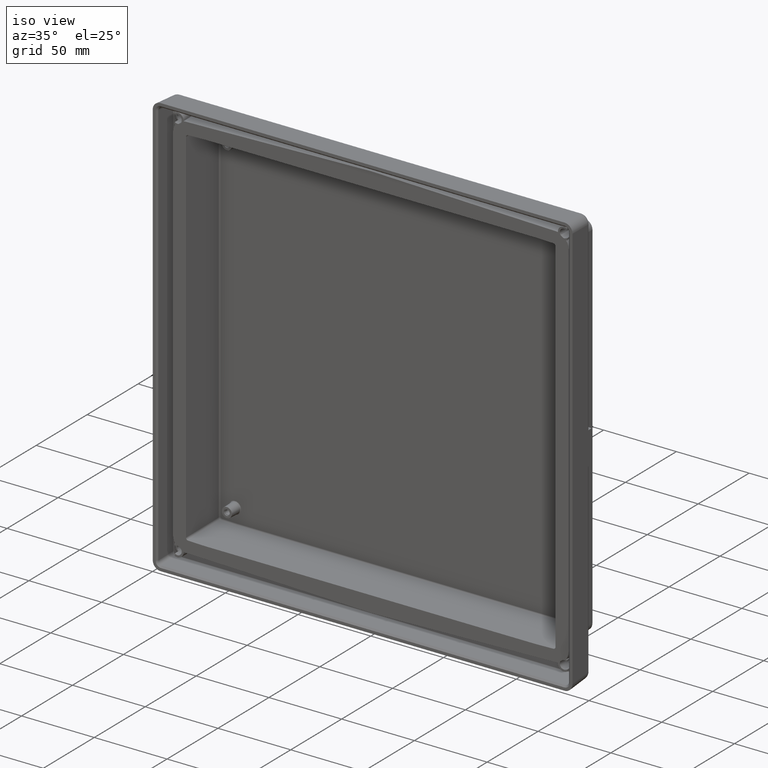
[diagram: clean part render]
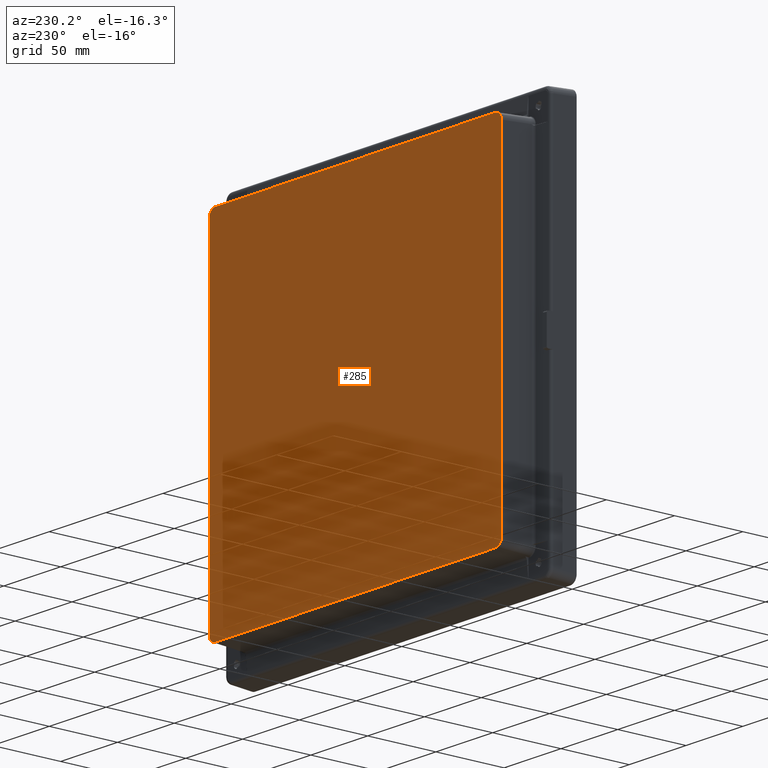
[diagram: tour spotlight — one face highlighted and labeled with its STEP entity id]
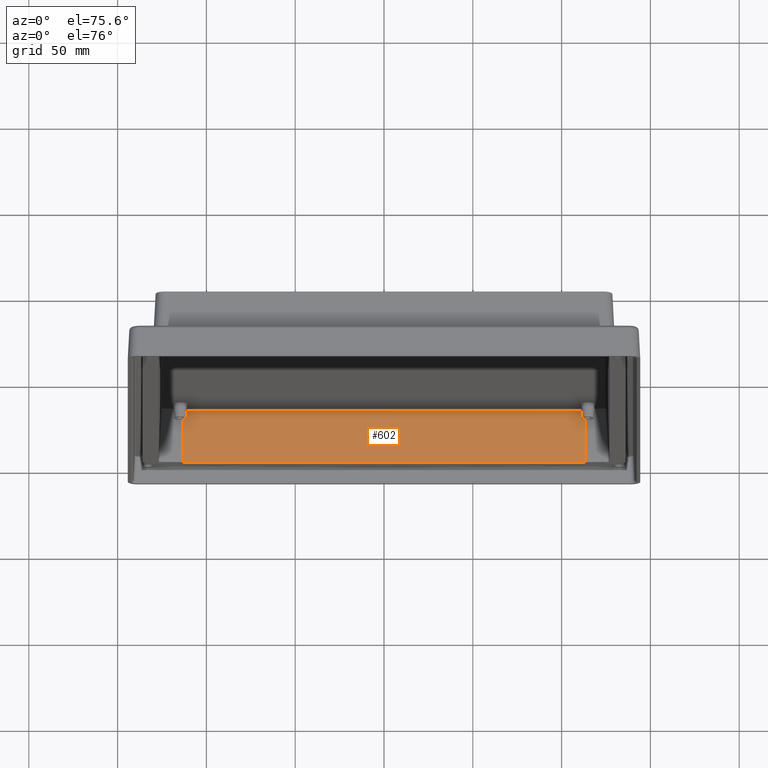
[diagram: tour spotlight — one face highlighted and labeled with its STEP entity id]
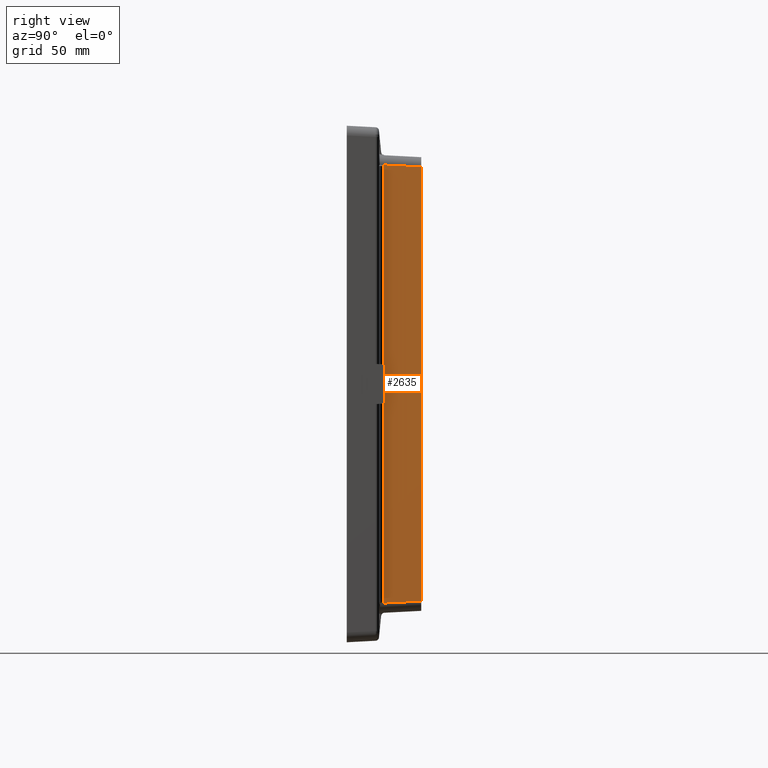
[diagram: tour spotlight — one face highlighted and labeled with its STEP entity id]
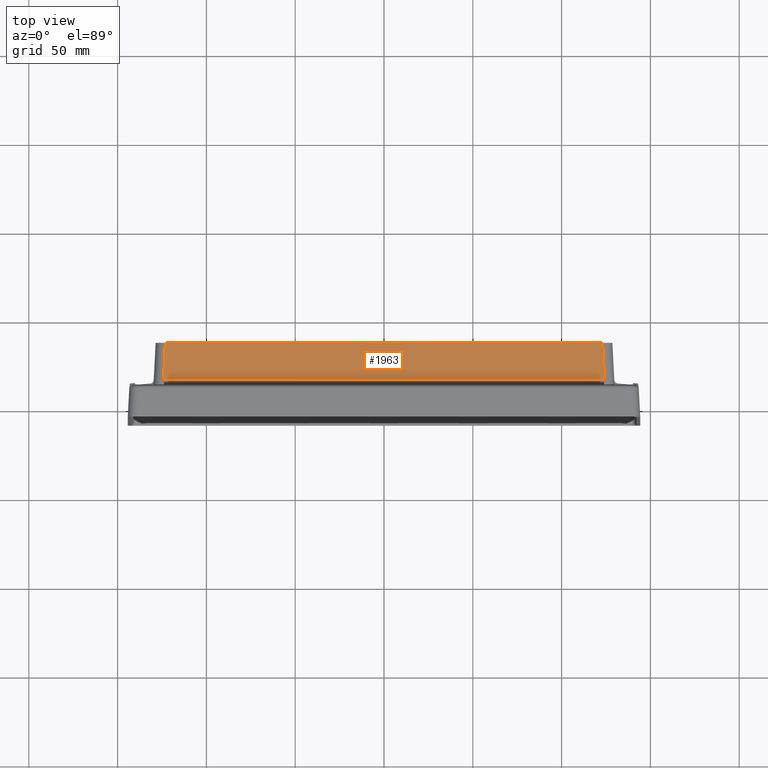
[diagram: tour spotlight — one face highlighted and labeled with its STEP entity id]
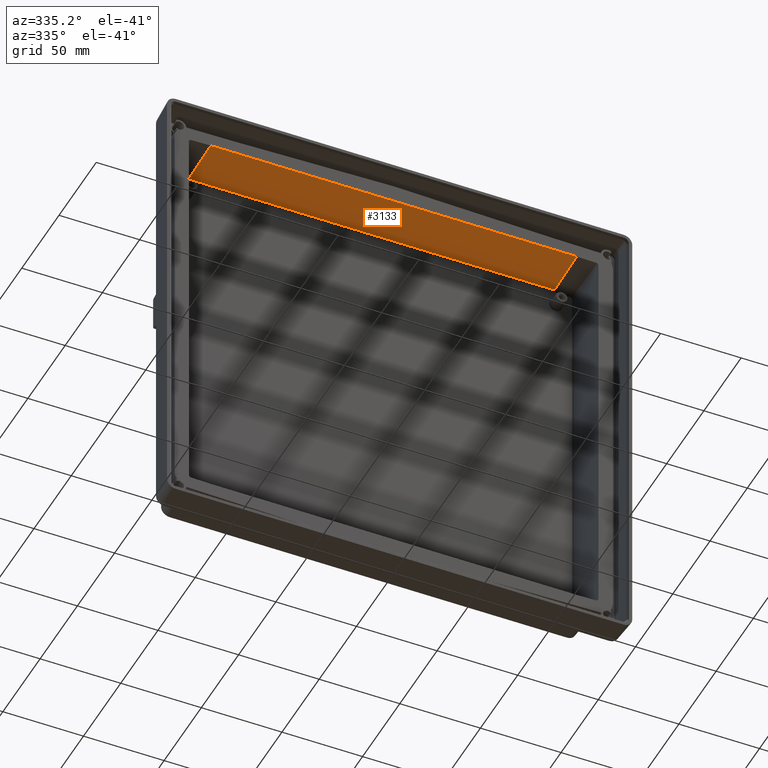
[diagram: tour spotlight — one face highlighted and labeled with its STEP entity id]
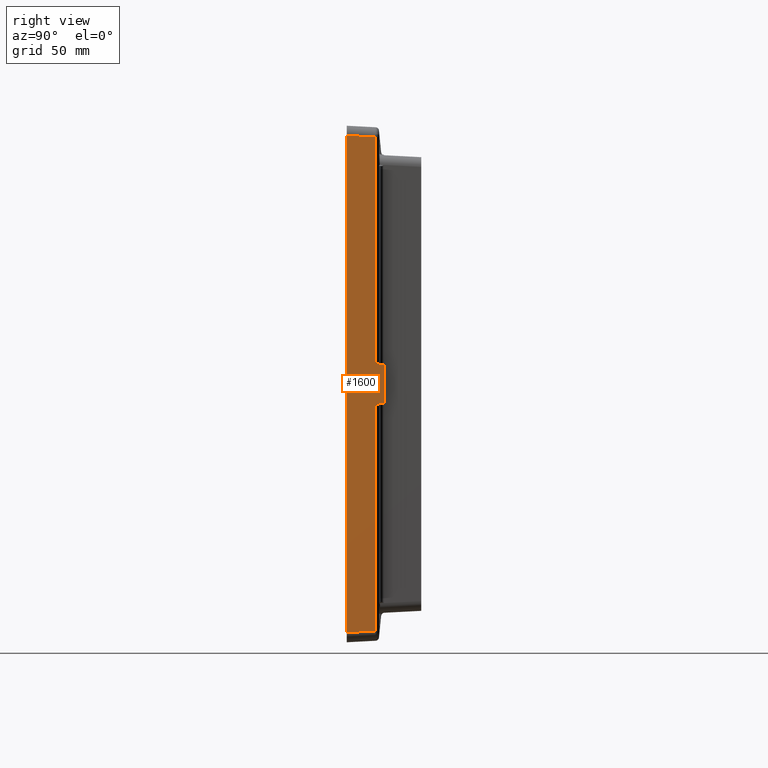
[diagram: tour spotlight — one face highlighted and labeled with its STEP entity id]
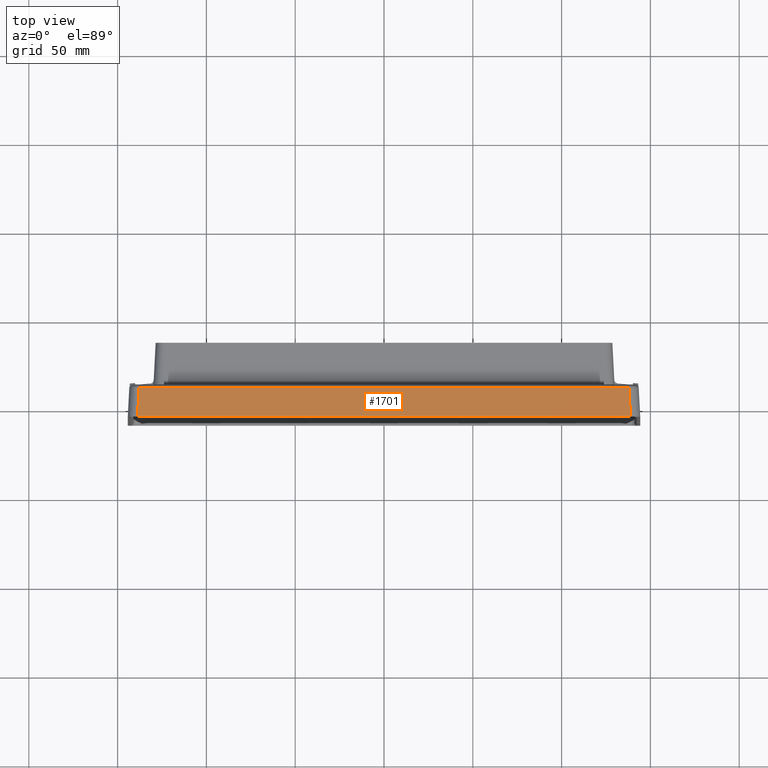
[diagram: tour spotlight — one face highlighted and labeled with its STEP entity id]
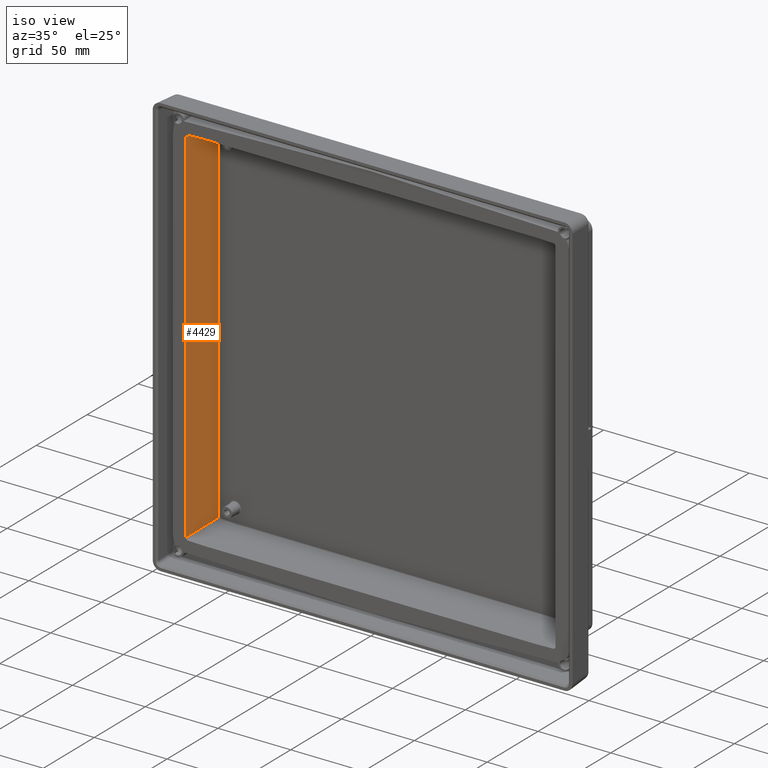
[diagram: tour spotlight — one face highlighted and labeled with its STEP entity id]
A machine part: a face-by-face anatomy tour. The part has 359 B-rep faces; the first image is the clean iso view, then the 8 largest visible faces are spotlighted one at a time (largest first), each with its STEP entity span.

Face 1 — auxiliary view, entity #285. In plain terms, the highlighted planar face has unit normal (0, 1, -0).
Definition (entity closure, byte-faithful):
#200 = VERTEX_POINT ( 'NONE', #5927 ) ;
#202 = EDGE_CURVE ( 'NONE', #203, #200, #5926, .T. ) ;
#203 = VERTEX_POINT ( 'NONE', #5925 ) ;
#285 = ADVANCED_FACE ( 'NONE', ( #6096 ), #6094, .T. ) ;
#286 = ORIENTED_EDGE ( 'NONE', *, *, #287, .F. ) ;
#287 = EDGE_CURVE ( 'NONE', #288, #16769, #6095, .T. ) ;
#288 = VERTEX_POINT ( 'NONE', #6133 ) ;
#289 = ORIENTED_EDGE ( 'NONE', *, *, #290, .F. ) ;
#290 = EDGE_CURVE ( 'NONE', #291, #288, #6131, .T. ) ;
#291 = VERTEX_POINT ( 'NONE', #6130 ) ;
#292 = ORIENTED_EDGE ( 'NONE', *, *, #293, .F. ) ;
#293 = EDGE_CURVE ( 'NONE', #294, #291, #6132, .T. ) ;
#294 = VERTEX_POINT ( 'NONE', #6122 ) ;
#295 = ORIENTED_EDGE ( 'NONE', *, *, #296, .F. ) ;
#296 = EDGE_CURVE ( 'NONE', #297, #294, #6165, .T. ) ;
#297 = VERTEX_POINT ( 'NONE', #6164 ) ;
#308 = EDGE_LOOP ( 'NONE', ( #286, #289, #292, #295, #354, #356, #357, #358 ) ) ;
#354 = ORIENTED_EDGE ( 'NONE', *, *, #355, .F. ) ;
#355 = EDGE_CURVE ( 'NONE', #203, #297, #6366, .T. ) ;
#356 = ORIENTED_EDGE ( 'NONE', *, *, #202, .T. ) ;
#357 = ORIENTED_EDGE ( 'NONE', *, *, #11743, .T. ) ;
#358 = ORIENTED_EDGE ( 'NONE', *, *, #16806, .T. ) ;
#2223 = LINE ( 'NONE', #2324, #2322 ) ;
#2321 = DIRECTION ( 'NONE',  ( -3.603387019590430100E-009, 0.0000000000000000000, 1.000000000000000000 ) ) ;
#2322 = VECTOR ( 'NONE', #2321, 1000.000000000000000 ) ;
#2324 = CARTESIAN_POINT ( 'NONE',  ( -128.5681359447917800, 34.00000000000000000, 1.206187927316193500E-009 ) ) ;
#2955 = CARTESIAN_POINT ( 'NONE',  ( -123.0725573194073400, 34.00000000000000000, 127.7181355043765800 ) ) ;
#3013 = B_SPLINE_CURVE_WITH_KNOTS ( 'NONE', 3,
 ( #3023, #3021, #3019, #3138, #3136, #3135, #3134, #3132, #3131, #3129, #3127, #3126, #3124, #3122, #3120, #3118, #3116, #3114, #3112 ),
 .UNSPECIFIED., .F., .F.,
 ( 4, 2, 2, 2, 2, 2, 1, 2, 2, 4 ),
 ( 0.0000000000000000000, 0.06250000000000444100, 0.1250000000000088800, 0.2500000000000111600, 0.5000000000000075500, 0.7500000000000040000, 0.8125000000000008900, 0.8437499999999993300, 0.8749999999999977800, 1.000000000000000000 ),
 .UNSPECIFIED. ) ;
#3019 = CARTESIAN_POINT ( 'NONE',  ( -128.5588231599276400, 34.00000000000000000, 122.5854531838830500 ) ) ;
#3021 = CARTESIAN_POINT ( 'NONE',  ( -128.5677825519971100, 34.00000000000000700, 122.4049163384346500 ) ) ;
#3023 = CARTESIAN_POINT ( 'NONE',  ( -128.5681363852069400, 34.00000000000000000, 122.2225573218197600 ) ) ;
#3112 = CARTESIAN_POINT ( 'NONE',  ( -123.0725573194073400, 34.00000000000000000, 127.7181355043765800 ) ) ;
#3114 = CARTESIAN_POINT ( 'NONE',  ( -123.4376415684577100, 34.00000000000000700, 127.7174275758581100 ) ) ;
#3116 = CARTESIAN_POINT ( 'NONE',  ( -123.7950709316453400, 34.00000000000000000, 127.6822979644525200 ) ) ;
#3118 = CARTESIAN_POINT ( 'NONE',  ( -124.2322890283015400, 34.00000000000000000, 127.5953588465867900 ) ) ;
#3120 = CARTESIAN_POINT ( 'NONE',  ( -124.3213491258694700, 34.00000000000000000, 127.5754143029121400 ) ) ;
#3122 = CARTESIAN_POINT ( 'NONE',  ( -124.4958647634325900, 33.99999999999998600, 127.5317713884321100 ) ) ;
#3124 = CARTESIAN_POINT ( 'NONE',  ( -124.7556501404411100, 33.99999999999999300, 127.4599964694797200 ) ) ;
#3126 = CARTESIAN_POINT ( 'NONE',  ( -125.0094712794413400, 34.00000000000000700, 127.3692899088304500 ) ) ;
#3127 = CARTESIAN_POINT ( 'NONE',  ( -125.8422878805347600, 34.00000000000000000, 127.0248643917840900 ) ) ;
#3129 = CARTESIAN_POINT ( 'NONE',  ( -126.4498859727965500, 34.00000000000000700, 126.6190763737210600 ) ) ;
#3131 = CARTESIAN_POINT ( 'NONE',  ( -127.4689750129740600, 34.00000000000000000, 125.5997846436123200 ) ) ;
#3132 = CARTESIAN_POINT ( 'NONE',  ( -127.8751061038876300, 34.00000000000000700, 124.9920788566391700 ) ) ;
#3134 = CARTESIAN_POINT ( 'NONE',  ( -128.2880541750471100, 33.99999999999999300, 123.9930124098585900 ) ) ;
#3135 = CARTESIAN_POINT ( 'NONE',  ( -128.3925010488633800, 34.00000000000000000, 123.6484772291573800 ) ) ;
#3136 = CARTESIAN_POINT ( 'NONE',  ( -128.4978694950174500, 34.00000000000000000, 123.1180294366892100 ) ) ;
#3138 = CARTESIAN_POINT ( 'NONE',  ( -128.5236932580695800, 34.00000000000000700, 122.9428825324471000 ) ) ;
#3142 = CARTESIAN_POINT ( 'NONE',  ( -128.5681363852069400, 34.00000000000000000, 122.2225573218197600 ) ) ;
#5898 = CARTESIAN_POINT ( 'NONE',  ( -128.5681355043765800, 34.00000000000000000, -122.2225573194073900 ) ) ;
#5899 = CARTESIAN_POINT ( 'NONE',  ( -128.5674280201825800, 33.99999999999999300, -122.5876413805750400 ) ) ;
#5900 = CARTESIAN_POINT ( 'NONE',  ( -128.5322981208466000, 34.00000000000000000, -122.9450707192281800 ) ) ;
#5901 = CARTESIAN_POINT ( 'NONE',  ( -128.4453588257711100, 34.00000000000000000, -123.3822889894016300 ) ) ;
#5902 = CARTESIAN_POINT ( 'NONE',  ( -128.4254142311799900, 34.00000000000001400, -123.4713492334484400 ) ) ;
#5903 = CARTESIAN_POINT ( 'NONE',  ( -128.3817712680707600, 34.00000000000000700, -123.6458649755374100 ) ) ;
#5904 = CARTESIAN_POINT ( 'NONE',  ( -128.3099963139038100, 33.99999999999998600, -123.9056504326782900 ) ) ;
#5905 = CARTESIAN_POINT ( 'NONE',  ( -128.2192898312280200, 34.00000000000000000, -124.1594714218417300 ) ) ;
#5906 = CARTESIAN_POINT ( 'NONE',  ( -127.8748648256218600, 33.99999999999999300, -124.9922870124363900 ) ) ;
#5907 = CARTESIAN_POINT ( 'NONE',  ( -127.4690763610525900, 34.00000000000000700, -125.5998859724959100 ) ) ;
#5908 = CARTESIAN_POINT ( 'NONE',  ( -126.4497847171402800, 34.00000000000000000, -126.6189749524157000 ) ) ;
#5909 = CARTESIAN_POINT ( 'NONE',  ( -125.8420788791272100, 34.00000000000000700, -127.0251060913735400 ) ) ;
#5910 = CARTESIAN_POINT ( 'NONE',  ( -124.8430124284649000, 34.00000000000000000, -127.4380541689624200 ) ) ;
#5911 = CARTESIAN_POINT ( 'NONE',  ( -124.4984772434919800, 34.00000000000000000, -127.5425010453011200 ) ) ;
#5912 = CARTESIAN_POINT ( 'NONE',  ( -123.9680294452946500, 34.00000000000000700, -127.6478694936635800 ) ) ;
#5913 = CARTESIAN_POINT ( 'NONE',  ( -123.7928825395197700, 34.00000000000000000, -127.6736932571933200 ) ) ;
#5914 = CARTESIAN_POINT ( 'NONE',  ( -123.4354531874508000, 34.00000000000000000, -127.7088231597480500 ) ) ;
#5915 = CARTESIAN_POINT ( 'NONE',  ( -123.2549163402291200, 33.99999999999999300, -127.7177825519932800 ) ) ;
#5924 = CARTESIAN_POINT ( 'NONE',  ( -123.0725573218201100, 33.99999995396409200, -127.7181355067892400 ) ) ;
#5925 = CARTESIAN_POINT ( 'NONE',  ( -123.0725573218201100, 33.99999995396409200, -127.7181355067892400 ) ) ;
#5926 = B_SPLINE_CURVE_WITH_KNOTS ( 'NONE', 3,
 ( #5924, #5915, #5914, #5913, #5912, #5911, #5910, #5909, #5908, #5907, #5906, #5905, #5904, #5903, #5902, #5901, #5900, #5899, #5898 ),
 .UNSPECIFIED., .F., .F.,
 ( 4, 2, 2, 2, 2, 2, 1, 2, 2, 4 ),
 ( 0.0000000000000000000, 0.06250000000000066600, 0.1250000000000013300, 0.2500000000000092100, 0.5000000000000124300, 0.7500000000000156500, 0.8125000000000147700, 0.8437500000000129900, 0.8750000000000112100, 1.000000000000000000 ),
 .UNSPECIFIED. ) ;
#5927 = CARTESIAN_POINT ( 'NONE',  ( -128.5681355043765800, 34.00000000000000000, -122.2225573194073900 ) ) ;
#6093 = AXIS2_PLACEMENT_3D ( 'NONE', #6139, #6138, #6137 ) ;
#6094 = PLANE ( 'NONE',  #6093 ) ;
#6095 = LINE ( 'NONE', #6136, #6135 ) ;
#6096 = FACE_OUTER_BOUND ( 'NONE', #308, .T. ) ;
#6114 = CARTESIAN_POINT ( 'NONE',  ( 127.8718733568609300, 33.99998836856858700, 124.9992827306870700 ) ) ;
#6115 = CARTESIAN_POINT ( 'NONE',  ( 128.1591089235439500, 34.00000036328882700, 124.3049955523335700 ) ) ;
#6116 = CARTESIAN_POINT ( 'NONE',  ( 128.1666758319158500, 34.00000091243691000, 124.2863777582267600 ) ) ;
#6117 = CARTESIAN_POINT ( 'NONE',  ( 128.1826346427742500, 34.00000243778307400, 124.2464869269522300 ) ) ;
#6118 = CARTESIAN_POINT ( 'NONE',  ( 128.2062590309859900, 34.00000530248647800, 124.1864175831204900 ) ) ;
#6119 = CARTESIAN_POINT ( 'NONE',  ( 128.2591517645375600, 34.00001528476654000, 124.0446440473506000 ) ) ;
#6120 = CARTESIAN_POINT ( 'NONE',  ( 128.3005474414011400, 34.00002706284190200, 123.9204311565898400 ) ) ;
#6121 = CARTESIAN_POINT ( 'NONE',  ( 128.3777762036051200, 34.00004971309233100, 123.6686238204254100 ) ) ;
#6122 = CARTESIAN_POINT ( 'NONE',  ( 128.5681355043765800, 34.00000000000000000, -122.2225573194073900 ) ) ;
#6123 = DIRECTION ( 'NONE',  ( 9.869918709275913400E-012, -1.883282680432615100E-010, 1.000000000000000000 ) ) ;
#6124 = VECTOR ( 'NONE', #6123, 1000.000000000000000 ) ;
#6125 = CARTESIAN_POINT ( 'NONE',  ( 128.5681355055829400, 33.99999997698203900, 1.206180988422289600E-009 ) ) ;
#6126 = CARTESIAN_POINT ( 'NONE',  ( 128.4218430067699300, 34.00006305589375400, 123.4962352880103500 ) ) ;
#6127 = CARTESIAN_POINT ( 'NONE',  ( 128.5293853582832600, 34.00007487603052400, 122.9674820607044600 ) ) ;
#6128 = CARTESIAN_POINT ( 'NONE',  ( 128.5681345778162400, 34.00003448706893700, 122.5993946392701000 ) ) ;
#6129 = CARTESIAN_POINT ( 'NONE',  ( 128.5681355067892500, 33.99999995396407800, 122.2225573218197500 ) ) ;
#6130 = CARTESIAN_POINT ( 'NONE',  ( 128.5681355067892500, 33.99999995396407800, 122.2225573218197500 ) ) ;
#6131 = B_SPLINE_CURVE_WITH_KNOTS ( 'NONE', 3,
 ( #6129, #6128, #6127, #6126, #6121, #6120, #6119, #6118, #6117, #6116, #6115, #6114, #6179, #6178, #6177, #6176, #6175, #6174, #6173, #6172, #6171, #6170, #6169, #6168, #6167, #6166 ),
 .UNSPECIFIED., .F., .F.,
 ( 4, 2, 2, 1, 1, 2, 2, 2, 2, 2, 1, 1, 2, 2, 4 ),
 ( 0.0000000000000000000, 0.1250000000000335800, 0.1875000000000513500, 0.2187500000000626200, 0.2343750000000682200, 0.2421875000000710300, 0.2500000000000738300, 0.5000000000001165700, 0.6250000000001344500, 0.6875000000001462200, 0.7187500000001497700, 0.7343750000001515500, 0.7421875000001548800, 0.7500000000001582100, 1.000000000000000000 ),
 .UNSPECIFIED. ) ;
#6132 = LINE ( 'NONE', #6125, #6124 ) ;
#6133 = CARTESIAN_POINT ( 'NONE',  ( 123.0725573194074200, 34.00000000000000000, 127.7181355043765800 ) ) ;
#6134 = DIRECTION ( 'NONE',  ( -1.000000000000000000, 0.0000000000000000000, 0.0000000000000000000 ) ) ;
#6135 = VECTOR ( 'NONE', #6134, 1000.000000000000000 ) ;
#6136 = CARTESIAN_POINT ( 'NONE',  ( 4.163336342344337000E-014, 34.00000000000000000, 127.7181355043765800 ) ) ;
#6137 = DIRECTION ( 'NONE',  ( 0.0000000000000000000, 0.0000000000000000000, 1.000000000000000000 ) ) ;
#6138 = DIRECTION ( 'NONE',  ( 0.0000000000000000000, 1.000000000000000000, -0.0000000000000000000 ) ) ;
#6139 = CARTESIAN_POINT ( 'NONE',  ( 0.0000000000000000000, 34.00000000000000000, 0.0000000000000000000 ) ) ;
#6146 = CARTESIAN_POINT ( 'NONE',  ( 127.8321374305585200, 34.00001618146208000, -124.9778541167262500 ) ) ;
#6147 = CARTESIAN_POINT ( 'NONE',  ( 127.7390977898633700, 34.00002130088915900, -125.1327025965970600 ) ) ;
#6148 = CARTESIAN_POINT ( 'NONE',  ( 127.4388864828778800, 34.00002300683358000, -125.5810518628128700 ) ) ;
#6149 = CARTESIAN_POINT ( 'NONE',  ( 127.2105816647666500, 33.99999976287050900, -125.8582793566805700 ) ) ;
#6150 = CARTESIAN_POINT ( 'NONE',  ( 126.4571282877563200, 34.00000047425905300, -126.6117326740065700 ) ) ;
#6151 = CARTESIAN_POINT ( 'NONE',  ( 125.8492827550389600, 33.99998836852569900, -127.0218733436991800 ) ) ;
#6152 = CARTESIAN_POINT ( 'NONE',  ( 125.1549955720927600, 34.00000036328983600, -127.3091089154656600 ) ) ;
#6153 = CARTESIAN_POINT ( 'NONE',  ( 125.1363785906520700, 34.00000091278018000, -127.3166754933237600 ) ) ;
#6154 = CARTESIAN_POINT ( 'NONE',  ( 125.0964885387201500, 34.00000243946750800, -127.3326340033810500 ) ) ;
#6155 = CARTESIAN_POINT ( 'NONE',  ( 125.0364203304651100, 34.00000530714589100, -127.3562579695496900 ) ) ;
#6156 = CARTESIAN_POINT ( 'NONE',  ( 124.8946492050961400, 34.00001530239276800, -127.4091499139605500 ) ) ;
#6157 = CARTESIAN_POINT ( 'NONE',  ( 124.7704379527669100, 34.00002709944578100, -127.4505452201668900 ) ) ;
#6158 = CARTESIAN_POINT ( 'NONE',  ( 124.5186332830145900, 34.00004979161714400, -127.5277735646209200 ) ) ;
#6160 = CARTESIAN_POINT ( 'NONE',  ( 124.3462457114737700, 34.00006316758986500, -127.5718405222918600 ) ) ;
#6161 = CARTESIAN_POINT ( 'NONE',  ( 123.8174926875070000, 34.00007505234594200, -127.6793839005578200 ) ) ;
#6162 = CARTESIAN_POINT ( 'NONE',  ( 123.4494017726701900, 34.00003465766961600, -127.7181345688752100 ) ) ;
#6163 = CARTESIAN_POINT ( 'NONE',  ( 123.0725573218202000, 33.99999995396409200, -127.7181355067892400 ) ) ;
#6164 = CARTESIAN_POINT ( 'NONE',  ( 123.0725573218202000, 33.99999995396409200, -127.7181355067892400 ) ) ;
#6165 = B_SPLINE_CURVE_WITH_KNOTS ( 'NONE', 3,
 ( #6163, #6162, #6161, #6160, #6158, #6157, #6156, #6155, #6154, #6153, #6152, #6151, #6150, #6149, #6148, #6147, #6146, #6215, #6214, #6213, #6212, #6211, #6210, #6209, #6208, #6207 ),
 .UNSPECIFIED., .F., .F.,
 ( 4, 2, 2, 1, 1, 2, 2, 2, 2, 2, 1, 1, 2, 2, 4 ),
 ( 0.0000000000000000000, 0.1249999999999602300, 0.1874999999999370200, 0.2187499999999239500, 0.2343749999999167600, 0.2421874999999160700, 0.2499999999999153500, 0.4999999999999112900, 0.6249999999999128500, 0.6874999999999162900, 0.7187499999999201700, 0.7343749999999241700, 0.7421874999999242800, 0.7499999999999242800, 1.000000000000000000 ),
 .UNSPECIFIED. ) ;
#6166 = CARTESIAN_POINT ( 'NONE',  ( 123.0725573194074200, 34.00000000000000000, 127.7181355043765800 ) ) ;
#6167 = CARTESIAN_POINT ( 'NONE',  ( 123.8262814603974500, 34.00006932271326600, 127.7181327521571900 ) ) ;
#6168 = CARTESIAN_POINT ( 'NONE',  ( 124.5428295193994300, 34.00001008939228300, 127.5623699811602700 ) ) ;
#6169 = CARTESIAN_POINT ( 'NONE',  ( 125.1958222557653600, 33.99999968423141200, 127.2922183872671300 ) ) ;
#6170 = CARTESIAN_POINT ( 'NONE',  ( 125.2180538904343900, 33.99999948721435300, 127.2828676774262500 ) ) ;
#6171 = CARTESIAN_POINT ( 'NONE',  ( 125.2598827194698000, 33.99999939697549000, 127.2649505104751700 ) ) ;
#6172 = CARTESIAN_POINT ( 'NONE',  ( 125.3224340222614500, 33.99999965824257200, 127.2376957055053900 ) ) ;
#6173 = CARTESIAN_POINT ( 'NONE',  ( 125.4670126359697100, 34.00000252701167400, 127.1714687502145400 ) ) ;
#6174 = CARTESIAN_POINT ( 'NONE',  ( 125.5884762337906000, 34.00000719313460000, 127.1102630718057000 ) ) ;
#6175 = CARTESIAN_POINT ( 'NONE',  ( 125.8278541850013900, 34.00001618187764800, 126.9821373911130600 ) ) ;
#6176 = CARTESIAN_POINT ( 'NONE',  ( 125.9827026635980300, 34.00002130127625600, 126.8890977480086400 ) ) ;
#6177 = CARTESIAN_POINT ( 'NONE',  ( 126.4310519211209000, 34.00002300705133300, 126.5888864377308100 ) ) ;
#6178 = CARTESIAN_POINT ( 'NONE',  ( 126.7082794026281900, 33.99999976286426300, 126.3605816227583200 ) ) ;
#6179 = CARTESIAN_POINT ( 'NONE',  ( 127.4617326733999900, 34.00000047427152300, 125.6071282804840300 ) ) ;
#6207 = CARTESIAN_POINT ( 'NONE',  ( 128.5681355043765800, 34.00000000000000000, -122.2225573194073900 ) ) ;
#6208 = CARTESIAN_POINT ( 'NONE',  ( 128.5681327704140800, 34.00006897435489600, -122.9762668433222800 ) ) ;
#6209 = CARTESIAN_POINT ( 'NONE',  ( 128.4123755714273300, 34.00001009044216000, -123.6928159857479800 ) ) ;
#6210 = CARTESIAN_POINT ( 'NONE',  ( 128.1422182380397300, 33.99999968419960800, -124.3458226171317200 ) ) ;
#6211 = CARTESIAN_POINT ( 'NONE',  ( 128.1328677031890500, 33.99999948716162400, -124.3680538295969700 ) ) ;
#6212 = CARTESIAN_POINT ( 'NONE',  ( 128.1149505372902400, 33.99999939687404500, -124.4098826575884700 ) ) ;
#6213 = CARTESIAN_POINT ( 'NONE',  ( 128.0876957338838600, 33.99999965807295200, -124.4724339589124900 ) ) ;
#6214 = CARTESIAN_POINT ( 'NONE',  ( 128.0214687821130600, 34.00000252671584600, -124.6170125698782100 ) ) ;
#6215 = CARTESIAN_POINT ( 'NONE',  ( 127.9602631064214500, 34.00000719278141000, -124.7384761664914700 ) ) ;
#6363 = DIRECTION ( 'NONE',  ( 1.000000000000000000, 0.0000000000000000000, 0.0000000000000000000 ) ) ;
#6364 = VECTOR ( 'NONE', #6363, 1000.000000000000000 ) ;
#6365 = CARTESIAN_POINT ( 'NONE',  ( 4.163336342344337000E-014, 33.99999995396409200, -127.7181355067892400 ) ) ;
#6366 = LINE ( 'NONE', #6365, #6364 ) ;
#11743 = EDGE_CURVE ( 'NONE', #200, #16917, #2223, .T. ) ;
#16769 = VERTEX_POINT ( 'NONE', #2955 ) ;
#16806 = EDGE_CURVE ( 'NONE', #16917, #16769, #3013, .T. ) ;
#16917 = VERTEX_POINT ( 'NONE', #3142 ) ;

Face 2 — auxiliary view, entity #602. In plain terms, the highlighted planar face has unit normal (0, -0.0523, 0.9986).
Definition (entity closure, byte-faithful):
#544 = VERTEX_POINT ( 'NONE', #7113 ) ;
#546 = EDGE_CURVE ( 'NONE', #544, #547, #7112, .T. ) ;
#547 = VERTEX_POINT ( 'NONE', #7108 ) ;
#597 = EDGE_CURVE ( 'NONE', #544, #4427, #7256, .T. ) ;
#602 = ADVANCED_FACE ( 'NONE', ( #7281 ), #7279, .T. ) ;
#603 = EDGE_LOOP ( 'NONE', ( #604, #606, #662, #663 ) ) ;
#604 = ORIENTED_EDGE ( 'NONE', *, *, #605, .F. ) ;
#605 = EDGE_CURVE ( 'NONE', #547, #11669, #7280, .T. ) ;
#606 = ORIENTED_EDGE ( 'NONE', *, *, #546, .F. ) ;
#662 = ORIENTED_EDGE ( 'NONE', *, *, #597, .T. ) ;
#663 = ORIENTED_EDGE ( 'NONE', *, *, #11505, .T. ) ;
#1919 = CARTESIAN_POINT ( 'NONE',  ( -113.4789220335499400, 3.469446951953609900E-015, -126.2545312587521400 ) ) ;
#1921 = CARTESIAN_POINT ( 'NONE',  ( -113.4751884815867000, 9.884111985414300200, -125.7365268994116700 ) ) ;
#1923 = CARTESIAN_POINT ( 'NONE',  ( -113.4714549296235800, 19.76822397082859000, -125.2185225400712300 ) ) ;
#1925 = CARTESIAN_POINT ( 'NONE',  ( -113.4677213776604400, 29.65233595624287600, -124.7005181807307700 ) ) ;
#1927 = CARTESIAN_POINT ( 'NONE',  ( -113.4789220335499400, 3.469446951953609900E-015, -126.2545312587521400 ) ) ;
#1933 = B_SPLINE_CURVE_WITH_KNOTS ( 'NONE', 3,
 ( #1925, #1923, #1921, #1919 ),
 .UNSPECIFIED., .F., .F.,
 ( 4, 4 ),
 ( 0.0000000000000000000, 1.000000000000000000 ),
 .UNSPECIFIED. ) ;
#4427 = VERTEX_POINT ( 'NONE', #15524 ) ;
#7108 = CARTESIAN_POINT ( 'NONE',  ( 113.4789220335499200, 3.469446951953609900E-015, -126.2545312587521400 ) ) ;
#7109 = DIRECTION ( 'NONE',  ( 0.0006851150356326667700, -0.9986293003848764100, -0.05233594396015204400 ) ) ;
#7110 = VECTOR ( 'NONE', #7109, 1000.000000000000100 ) ;
#7111 = CARTESIAN_POINT ( 'NONE',  ( 113.4687504607764100, 14.82616797812145400, -125.4775247197413800 ) ) ;
#7112 = LINE ( 'NONE', #7111, #7110 ) ;
#7113 = CARTESIAN_POINT ( 'NONE',  ( 113.4677213776605400, 29.65233595624287600, -124.7005181807307700 ) ) ;
#7252 = DIRECTION ( 'NONE',  ( -1.000000000000000000, 0.0000000000000000000, 0.0000000000000000000 ) ) ;
#7253 = VECTOR ( 'NONE', #7252, 1000.000000000000000 ) ;
#7254 = CARTESIAN_POINT ( 'NONE',  ( 4.857225732735059900E-014, 29.65233595624287600, -124.7005181807307700 ) ) ;
#7256 = LINE ( 'NONE', #7254, #7253 ) ;
#7272 = DIRECTION ( 'NONE',  ( -1.000000000000000000, 0.0000000000000000000, 0.0000000000000000000 ) ) ;
#7273 = VECTOR ( 'NONE', #7272, 1000.000000000000000 ) ;
#7274 = CARTESIAN_POINT ( 'NONE',  ( -6.938893903907228400E-015, 3.469446951953609900E-015, -126.2545312587521400 ) ) ;
#7275 = DIRECTION ( 'NONE',  ( 0.0000000000000000000, -0.9986295347545739400, -0.05233595624294390400 ) ) ;
#7276 = DIRECTION ( 'NONE',  ( 0.0000000000000000000, -0.05233595624294390400, 0.9986295347545739400 ) ) ;
#7277 = CARTESIAN_POINT ( 'NONE',  ( -61.77686386731740200, 3.000000000000000000, -126.0973079209030100 ) ) ;
#7278 = AXIS2_PLACEMENT_3D ( 'NONE', #7277, #7276, #7275 ) ;
#7279 = PLANE ( 'NONE',  #7278 ) ;
#7280 = LINE ( 'NONE', #7274, #7273 ) ;
#7281 = FACE_OUTER_BOUND ( 'NONE', #603, .T. ) ;
#11505 = EDGE_CURVE ( 'NONE', #4427, #11669, #1933, .T. ) ;
#11669 = VERTEX_POINT ( 'NONE', #1927 ) ;
#15524 = CARTESIAN_POINT ( 'NONE',  ( -113.4677213776604400, 29.65233595624287600, -124.7005181807307700 ) ) ;

Face 3 — right view, entity #2635. In plain terms, the highlighted planar face has unit normal (0.9986, 0.0523, -0).
Definition (entity closure, byte-faithful):
#291 = VERTEX_POINT ( 'NONE', #6130 ) ;
#293 = EDGE_CURVE ( 'NONE', #294, #291, #6132, .T. ) ;
#294 = VERTEX_POINT ( 'NONE', #6122 ) ;
#716 = VERTEX_POINT ( 'NONE', #7615 ) ;
#1412 = VERTEX_POINT ( 'NONE', #9315 ) ;
#1937 = EDGE_CURVE ( 'NONE', #716, #294, #10989, .T. ) ;
#1959 = EDGE_CURVE ( 'NONE', #291, #1412, #11032, .T. ) ;
#2613 = ORIENTED_EDGE ( 'NONE', *, *, #293, .T. ) ;
#2628 = EDGE_CURVE ( 'NONE', #716, #1412, #12496, .T. ) ;
#2635 = ADVANCED_FACE ( 'NONE', ( #12492 ), #12491, .T. ) ;
#2637 = EDGE_LOOP ( 'NONE', ( #2639, #2640, #2641, #2613 ) ) ;
#2639 = ORIENTED_EDGE ( 'NONE', *, *, #1959, .T. ) ;
#2640 = ORIENTED_EDGE ( 'NONE', *, *, #2628, .F. ) ;
#2641 = ORIENTED_EDGE ( 'NONE', *, *, #1937, .T. ) ;
#6122 = CARTESIAN_POINT ( 'NONE',  ( 128.5681355043765800, 34.00000000000000000, -122.2225573194073900 ) ) ;
#6123 = DIRECTION ( 'NONE',  ( 9.869918709275913400E-012, -1.883282680432615100E-010, 1.000000000000000000 ) ) ;
#6124 = VECTOR ( 'NONE', #6123, 1000.000000000000000 ) ;
#6125 = CARTESIAN_POINT ( 'NONE',  ( 128.5681355055829400, 33.99999997698203900, 1.206180988422289600E-009 ) ) ;
#6130 = CARTESIAN_POINT ( 'NONE',  ( 128.5681355067892500, 33.99999995396407800, 122.2225573218197500 ) ) ;
#6132 = LINE ( 'NONE', #6125, #6124 ) ;
#7615 = CARTESIAN_POINT ( 'NONE',  ( 129.6672885657192800, 13.02691097668609600, -123.3239384138185000 ) ) ;
#9315 = CARTESIAN_POINT ( 'NONE',  ( 129.6672606097805300, 13.02744362687426800, 123.3216824450783500 ) ) ;
#10986 = DIRECTION ( 'NONE',  ( -0.05226427757569369200, 0.9972619264783368900, 0.05231725610357429400 ) ) ;
#10987 = VECTOR ( 'NONE', #10986, 1000.000000000000000 ) ;
#10988 = CARTESIAN_POINT ( 'NONE',  ( 129.1177006379845100, 23.51368829972051700, -122.7726786492682700 ) ) ;
#10989 = LINE ( 'NONE', #10988, #10987 ) ;
#11029 = DIRECTION ( 'NONE',  ( 0.05226442768608220000, -0.9972646885840061900, 0.05226442864981203200 ) ) ;
#11030 = VECTOR ( 'NONE', #11029, 1000.000000000000200 ) ;
#11031 = CARTESIAN_POINT ( 'NONE',  ( 129.1176980582848700, 23.51372179041917200, 122.7721198834490500 ) ) ;
#11032 = LINE ( 'NONE', #11031, #11030 ) ;
#12487 = DIRECTION ( 'NONE',  ( -0.05233595624294390400, 0.9986295347545739400, 0.0000000000000000000 ) ) ;
#12488 = DIRECTION ( 'NONE',  ( 0.9986295347545739400, 0.05233595624294390400, -1.070175195516640000E-016 ) ) ;
#12489 = AXIS2_PLACEMENT_3D ( 'NONE', #12490, #12488, #12487 ) ;
#12490 = CARTESIAN_POINT ( 'NONE',  ( 130.3499999999999900, 0.0000000000000000000, -129.5000000000000000 ) ) ;
#12491 = PLANE ( 'NONE',  #12489 ) ;
#12492 = FACE_OUTER_BOUND ( 'NONE', #2637, .T. ) ;
#12493 = DIRECTION ( 'NONE',  ( 1.125332344861168400E-016, 7.033327155382302400E-018, 1.000000000000000000 ) ) ;
#12494 = VECTOR ( 'NONE', #12493, 1000.000000000000000 ) ;
#12495 = CARTESIAN_POINT ( 'NONE',  ( 129.6672606097805000, 13.02744362687426800, -1.387778780781445700E-013 ) ) ;
#12496 = LINE ( 'NONE', #12495, #12494 ) ;

Face 4 — top view, entity #1963. In plain terms, the highlighted planar face has unit normal (-0, 0.0523, 0.9986).
Definition (entity closure, byte-faithful):
#287 = EDGE_CURVE ( 'NONE', #288, #16769, #6095, .T. ) ;
#288 = VERTEX_POINT ( 'NONE', #6133 ) ;
#1735 = EDGE_CURVE ( 'NONE', #4989, #1761, #10296, .T. ) ;
#1761 = VERTEX_POINT ( 'NONE', #10545 ) ;
#1929 = ORIENTED_EDGE ( 'NONE', *, *, #1951, .T. ) ;
#1930 = ORIENTED_EDGE ( 'NONE', *, *, #287, .T. ) ;
#1931 = ORIENTED_EDGE ( 'NONE', *, *, #16782, .F. ) ;
#1951 = EDGE_CURVE ( 'NONE', #1761, #288, #10711, .T. ) ;
#1963 = ADVANCED_FACE ( 'NONE', ( #11028 ), #11027, .T. ) ;
#1965 = EDGE_LOOP ( 'NONE', ( #1967, #1929, #1930, #1931 ) ) ;
#1967 = ORIENTED_EDGE ( 'NONE', *, *, #1735, .T. ) ;
#2955 = CARTESIAN_POINT ( 'NONE',  ( -123.0725573194073400, 34.00000000000000000, 127.7181355043765800 ) ) ;
#3059 = DIRECTION ( 'NONE',  ( 0.05226442866851756200, 0.9972646885830286400, -0.05226442768603106700 ) ) ;
#3061 = VECTOR ( 'NONE', #3059, 1000.000000000000100 ) ;
#3063 = CARTESIAN_POINT ( 'NONE',  ( -123.6170479929083000, 23.61049922904110700, 128.2626261676420000 ) ) ;
#3064 = LINE ( 'NONE', #3063, #3061 ) ;
#4989 = VERTEX_POINT ( 'NONE', #17391 ) ;
#6095 = LINE ( 'NONE', #6136, #6135 ) ;
#6133 = CARTESIAN_POINT ( 'NONE',  ( 123.0725573194074200, 34.00000000000000000, 127.7181355043765800 ) ) ;
#6134 = DIRECTION ( 'NONE',  ( -1.000000000000000000, 0.0000000000000000000, 0.0000000000000000000 ) ) ;
#6135 = VECTOR ( 'NONE', #6134, 1000.000000000000000 ) ;
#6136 = CARTESIAN_POINT ( 'NONE',  ( 4.163336342344337000E-014, 34.00000000000000000, 127.7181355043765800 ) ) ;
#10293 = DIRECTION ( 'NONE',  ( 1.000000000000000000, 6.985752168542189800E-018, 0.0000000000000000000 ) ) ;
#10294 = VECTOR ( 'NONE', #10293, 1000.000000000000000 ) ;
#10295 = CARTESIAN_POINT ( 'NONE',  ( 4.163336342344337000E-014, 13.22099845808221200, 128.8071168309074000 ) ) ;
#10296 = LINE ( 'NONE', #10295, #10294 ) ;
#10545 = CARTESIAN_POINT ( 'NONE',  ( 124.1615386664093100, 13.22099845808221200, 128.8071168309074000 ) ) ;
#10708 = CARTESIAN_POINT ( 'NONE',  ( 123.6170479929083700, 23.61049922904110700, 128.2626261676420000 ) ) ;
#10711 = LINE ( 'NONE', #10708, #11034 ) ;
#11023 = DIRECTION ( 'NONE',  ( 0.0000000000000000000, -0.9986295347545739400, 0.05233595624294390400 ) ) ;
#11024 = DIRECTION ( 'NONE',  ( -0.0000000000000000000, 0.05233595624294390400, 0.9986295347545739400 ) ) ;
#11025 = CARTESIAN_POINT ( 'NONE',  ( -78.65000000000000600, 0.0000000000000000000, 129.5000000000000000 ) ) ;
#11026 = AXIS2_PLACEMENT_3D ( 'NONE', #11025, #11024, #11023 ) ;
#11027 = PLANE ( 'NONE',  #11026 ) ;
#11028 = FACE_OUTER_BOUND ( 'NONE', #1965, .T. ) ;
#11033 = DIRECTION ( 'NONE',  ( -0.05226442866851757600, 0.9972646885830287500, -0.05226442768603108100 ) ) ;
#11034 = VECTOR ( 'NONE', #11033, 999.9999999999998900 ) ;
#16769 = VERTEX_POINT ( 'NONE', #2955 ) ;
#16782 = EDGE_CURVE ( 'NONE', #4989, #16769, #3064, .T. ) ;
#17391 = CARTESIAN_POINT ( 'NONE',  ( -124.1615386664092300, 13.22099845808221000, 128.8071168309074000 ) ) ;

Face 5 — auxiliary view, entity #3133. In plain terms, the highlighted planar face has unit normal (0, -0.0523, -0.9986).
Definition (entity closure, byte-faithful):
#513 = EDGE_CURVE ( 'NONE', #514, #585, #6924, .T. ) ;
#514 = VERTEX_POINT ( 'NONE', #6919 ) ;
#585 = VERTEX_POINT ( 'NONE', #7231 ) ;
#3002 = EDGE_CURVE ( 'NONE', #4443, #514, #12912, .T. ) ;
#3133 = ADVANCED_FACE ( 'NONE', ( #13029 ), #13028, .T. ) ;
#3137 = EDGE_LOOP ( 'NONE', ( #3139, #3141, #3143, #3145 ) ) ;
#3139 = ORIENTED_EDGE ( 'NONE', *, *, #3140, .T. ) ;
#3140 = EDGE_CURVE ( 'NONE', #4391, #585, #13079, .T. ) ;
#3141 = ORIENTED_EDGE ( 'NONE', *, *, #513, .F. ) ;
#3143 = ORIENTED_EDGE ( 'NONE', *, *, #3002, .F. ) ;
#3145 = ORIENTED_EDGE ( 'NONE', *, *, #4442, .T. ) ;
#4391 = VERTEX_POINT ( 'NONE', #15441 ) ;
#4442 = EDGE_CURVE ( 'NONE', #4443, #4391, #15558, .T. ) ;
#4443 = VERTEX_POINT ( 'NONE', #15557 ) ;
#6919 = CARTESIAN_POINT ( 'NONE',  ( 113.4789220335499200, 0.0000000000000000000, 126.2545312587521400 ) ) ;
#6920 = DIRECTION ( 'NONE',  ( -0.0006851150356326662300, 0.9986293003848764100, -0.05233594396015200200 ) ) ;
#6921 = VECTOR ( 'NONE', #6920, 1000.000000000000200 ) ;
#6922 = CARTESIAN_POINT ( 'NONE',  ( 113.4687504607764100, 14.82616797812146300, 125.4775247197413800 ) ) ;
#6924 = LINE ( 'NONE', #6922, #6921 ) ;
#7231 = CARTESIAN_POINT ( 'NONE',  ( 113.4585788880029500, 29.65233595624287600, 124.7005181807305700 ) ) ;
#12906 = DIRECTION ( 'NONE',  ( 1.000000000000000000, 3.913407017725885500E-018, 0.0000000000000000000 ) ) ;
#12907 = VECTOR ( 'NONE', #12906, 1000.000000000000000 ) ;
#12908 = CARTESIAN_POINT ( 'NONE',  ( 4.857225732735059900E-014, -4.440892098500626200E-016, 126.2545312587521400 ) ) ;
#12912 = LINE ( 'NONE', #12908, #12907 ) ;
#13027 = AXIS2_PLACEMENT_3D ( 'NONE', #13078, #13077, #13076 ) ;
#13028 = PLANE ( 'NONE',  #13027 ) ;
#13029 = FACE_OUTER_BOUND ( 'NONE', #3137, .T. ) ;
#13073 = DIRECTION ( 'NONE',  ( 1.000000000000000000, 0.0000000000000000000, 0.0000000000000000000 ) ) ;
#13074 = VECTOR ( 'NONE', #13073, 1000.000000000000000 ) ;
#13075 = CARTESIAN_POINT ( 'NONE',  ( 0.0000000000000000000, 29.65233595624287600, 124.7005181807305700 ) ) ;
#13076 = DIRECTION ( 'NONE',  ( 0.0000000000000000000, 0.9986295347545739400, -0.05233595624294390400 ) ) ;
#13077 = DIRECTION ( 'NONE',  ( 0.0000000000000000000, -0.05233595624294390400, -0.9986295347545739400 ) ) ;
#13078 = CARTESIAN_POINT ( 'NONE',  ( -61.77686386731740200, 3.000000000000000000, 126.0973079209030100 ) ) ;
#13079 = LINE ( 'NONE', #13075, #13074 ) ;
#15441 = CARTESIAN_POINT ( 'NONE',  ( -113.4622346338309000, 29.65233483222446500, 124.7004703914936000 ) ) ;
#15553 = CARTESIAN_POINT ( 'NONE',  ( -113.4622346338309000, 29.65233483222446500, 124.7004703914936000 ) ) ;
#15554 = CARTESIAN_POINT ( 'NONE',  ( -113.4714549287563000, 19.76822626680019500, 125.2185224197444600 ) ) ;
#15555 = CARTESIAN_POINT ( 'NONE',  ( -113.4751884811530700, 9.884113133400099100, 125.7365268392483000 ) ) ;
#15556 = CARTESIAN_POINT ( 'NONE',  ( -113.4789220335498200, -8.881784197001252300E-016, 126.2545312587521400 ) ) ;
#15557 = CARTESIAN_POINT ( 'NONE',  ( -113.4789220335498200, -8.881784197001252300E-016, 126.2545312587521400 ) ) ;
#15558 = B_SPLINE_CURVE_WITH_KNOTS ( 'NONE', 3,
 ( #15556, #15555, #15554, #15553 ),
 .UNSPECIFIED., .F., .F.,
 ( 4, 4 ),
 ( 0.0000000000000000000, 1.000000000000000000 ),
 .UNSPECIFIED. ) ;

Face 6 — right view, entity #1600. In plain terms, the highlighted planar face has unit normal (0.9986, 0.0523, 0).
Definition (entity closure, byte-faithful):
#323 = VERTEX_POINT ( 'NONE', #6269 ) ;
#325 = EDGE_CURVE ( 'NONE', #326, #323, #6267, .T. ) ;
#326 = VERTEX_POINT ( 'NONE', #6266 ) ;
#335 = EDGE_CURVE ( 'NONE', #336, #337, #6300, .T. ) ;
#336 = VERTEX_POINT ( 'NONE', #6076 ) ;
#337 = VERTEX_POINT ( 'NONE', #6075 ) ;
#382 = EDGE_CURVE ( 'NONE', #326, #337, #6440, .T. ) ;
#415 = VERTEX_POINT ( 'NONE', #6595 ) ;
#417 = EDGE_CURVE ( 'NONE', #323, #415, #6606, .T. ) ;
#429 = VERTEX_POINT ( 'NONE', #6639 ) ;
#435 = EDGE_CURVE ( 'NONE', #336, #429, #6669, .T. ) ;
#1452 = EDGE_CURVE ( 'NONE', #1454, #1577, #9633, .T. ) ;
#1454 = VERTEX_POINT ( 'NONE', #9664 ) ;
#1522 = EDGE_CURVE ( 'NONE', #1577, #429, #9784, .T. ) ;
#1577 = VERTEX_POINT ( 'NONE', #10065 ) ;
#1581 = ORIENTED_EDGE ( 'NONE', *, *, #325, .T. ) ;
#1583 = ORIENTED_EDGE ( 'NONE', *, *, #417, .T. ) ;
#1600 = ADVANCED_FACE ( 'NONE', ( #10045 ), #10048, .T. ) ;
#1603 = EDGE_LOOP ( 'NONE', ( #1605, #1607, #1610, #1705, #1706, #1707, #1709, #1710, #1581, #1583 ) ) ;
#1605 = ORIENTED_EDGE ( 'NONE', *, *, #1622, .T. ) ;
#1607 = ORIENTED_EDGE ( 'NONE', *, *, #1608, .T. ) ;
#1608 = EDGE_CURVE ( 'NONE', #1620, #1609, #10085, .T. ) ;
#1609 = VERTEX_POINT ( 'NONE', #10081 ) ;
#1610 = ORIENTED_EDGE ( 'NONE', *, *, #1611, .T. ) ;
#1611 = EDGE_CURVE ( 'NONE', #1609, #1454, #10080, .T. ) ;
#1620 = VERTEX_POINT ( 'NONE', #10070 ) ;
#1622 = EDGE_CURVE ( 'NONE', #415, #1620, #10104, .T. ) ;
#1705 = ORIENTED_EDGE ( 'NONE', *, *, #1452, .T. ) ;
#1706 = ORIENTED_EDGE ( 'NONE', *, *, #1522, .T. ) ;
#1707 = ORIENTED_EDGE ( 'NONE', *, *, #435, .F. ) ;
#1709 = ORIENTED_EDGE ( 'NONE', *, *, #335, .T. ) ;
#1710 = ORIENTED_EDGE ( 'NONE', *, *, #382, .F. ) ;
#5522 = CARTESIAN_POINT ( 'NONE',  ( 143.1864727759787900, 12.66085365757832200, -10.88371536930137200 ) ) ;
#6044 = CARTESIAN_POINT ( 'NONE',  ( 143.1763590932376900, 12.85383422037816500, -10.67068788910605400 ) ) ;
#6047 = CARTESIAN_POINT ( 'NONE',  ( 143.1794645579842600, 12.79457842306968200, -10.74509932485192300 ) ) ;
#6071 = CARTESIAN_POINT ( 'NONE',  ( 143.1671705889749800, 13.02916132616920000, -10.10101209543580600 ) ) ;
#6072 = CARTESIAN_POINT ( 'NONE',  ( 143.1672727402602200, 13.02721216353347000, -10.23484906752013900 ) ) ;
#6073 = CARTESIAN_POINT ( 'NONE',  ( 143.1685403268237500, 13.00302517105186000, -10.35892679435273000 ) ) ;
#6074 = CARTESIAN_POINT ( 'NONE',  ( 143.1715816041259500, 12.94499414314252100, -10.50182489632881700 ) ) ;
#6075 = CARTESIAN_POINT ( 'NONE',  ( 143.1671705889749800, 13.02916132616920000, -10.10101209543580600 ) ) ;
#6076 = CARTESIAN_POINT ( 'NONE',  ( 143.2173183224587700, 12.07228556898588100, -11.09964163019037600 ) ) ;
#6078 = CARTESIAN_POINT ( 'NONE',  ( 143.1723128107036300, 12.93104189048692200, -10.53220915788631600 ) ) ;
#6079 = CARTESIAN_POINT ( 'NONE',  ( 143.1738515948671300, 12.90168013953086200, -10.58862133307843600 ) ) ;
#6262 = CARTESIAN_POINT ( 'NONE',  ( 143.1671705889749800, 13.02916132616920000, 10.10101209543617500 ) ) ;
#6266 = CARTESIAN_POINT ( 'NONE',  ( 143.1671705889749800, 13.02916132616920000, 10.10101209543617500 ) ) ;
#6267 = B_SPLINE_CURVE_WITH_KNOTS ( 'NONE', 3,
 ( #6262, #6324, #6323, #6322, #6321, #6320, #6319, #6318, #6317, #6316, #6315, #6314, #6313, #6312, #6311, #6310 ),
 .UNSPECIFIED., .F., .F.,
 ( 4, 1, 2, 2, 2, 1, 2, 2, 4 ),
 ( 0.0000000000000000000, 0.1250000000000046100, 0.1875000000000048800, 0.2500000000000051600, 0.5000000000000065500, 0.6250000000000083300, 0.6875000000000068800, 0.7500000000000054400, 1.000000000000000000 ),
 .UNSPECIFIED. ) ;
#6269 = CARTESIAN_POINT ( 'NONE',  ( 143.2173183224587400, 12.07228556898587400, 11.09964163019074600 ) ) ;
#6288 = CARTESIAN_POINT ( 'NONE',  ( 143.1918846099279100, 12.55758971426442700, -10.95668327066724300 ) ) ;
#6289 = CARTESIAN_POINT ( 'NONE',  ( 143.1995562555565000, 12.41120599540506900, -11.02323842522440800 ) ) ;
#6290 = CARTESIAN_POINT ( 'NONE',  ( 143.2010072944636900, 12.38351852367778800, -11.03420830894826700 ) ) ;
#6291 = CARTESIAN_POINT ( 'NONE',  ( 143.2040915330559300, 12.32466774552177400, -11.05449127701683300 ) ) ;
#6292 = CARTESIAN_POINT ( 'NONE',  ( 143.2088167615036100, 12.23450501563088000, -11.08091778255295500 ) ) ;
#6293 = CARTESIAN_POINT ( 'NONE',  ( 143.2138386016292500, 12.13868259776937500, -11.09535044838879100 ) ) ;
#6294 = CARTESIAN_POINT ( 'NONE',  ( 143.2173183224587700, 12.07228556898588100, -11.09964163019037600 ) ) ;
#6300 = B_SPLINE_CURVE_WITH_KNOTS ( 'NONE', 3,
 ( #6294, #6293, #6292, #6291, #6290, #6289, #6288, #5522, #6047, #6044, #6079, #6078, #6074, #6073, #6072, #6071 ),
 .UNSPECIFIED., .F., .F.,
 ( 4, 1, 2, 2, 2, 1, 2, 2, 4 ),
 ( 0.0000000000000000000, 0.1249999999999970300, 0.1874999999999967800, 0.2499999999999965600, 0.4999999999999941200, 0.6249999999999931200, 0.6874999999999931200, 0.7499999999999930100, 1.000000000000000000 ),
 .UNSPECIFIED. ) ;
#6310 = CARTESIAN_POINT ( 'NONE',  ( 143.2173183224587400, 12.07228556898587400, 11.09964163019074600 ) ) ;
#6311 = CARTESIAN_POINT ( 'NONE',  ( 143.2103399133639200, 12.20544154678744600, 11.09103587599990300 ) ) ;
#6312 = CARTESIAN_POINT ( 'NONE',  ( 143.2039077813545900, 12.32817393685113300, 11.06113113070742700 ) ) ;
#6313 = CARTESIAN_POINT ( 'NONE',  ( 143.1965504626997800, 12.46855993975838800, 10.99712646021481000 ) ) ;
#6314 = CARTESIAN_POINT ( 'NONE',  ( 143.1949852391382500, 12.49842618448219000, 10.98189515260686000 ) ) ;
#6315 = CARTESIAN_POINT ( 'NONE',  ( 143.1920913252724300, 12.55364535051822000, 10.95026082010950000 ) ) ;
#6316 = CARTESIAN_POINT ( 'NONE',  ( 143.1878932279004200, 12.63374982030302500, 10.89920723057258200 ) ) ;
#6317 = CARTESIAN_POINT ( 'NONE',  ( 143.1841234508082700, 12.70568145228013000, 10.83734736866301200 ) ) ;
#6318 = CARTESIAN_POINT ( 'NONE',  ( 143.1771549903305900, 12.83864759915741900, 10.69921928168035300 ) ) ;
#6319 = CARTESIAN_POINT ( 'NONE',  ( 143.1734986195885700, 12.90841530906694800, 10.59226236796617500 ) ) ;
#6320 = CARTESIAN_POINT ( 'NONE',  ( 143.1703420309347300, 12.96864660863875700, 10.44349100292590800 ) ) ;
#6321 = CARTESIAN_POINT ( 'NONE',  ( 143.1698295559134800, 12.97842521456847800, 10.41531684775445200 ) ) ;
#6322 = CARTESIAN_POINT ( 'NONE',  ( 143.1689043343629900, 12.99607949343972300, 10.35562680447347700 ) ) ;
#6323 = CARTESIAN_POINT ( 'NONE',  ( 143.1677350732387600, 13.01839032477374800, 10.26433012445051100 ) ) ;
#6324 = CARTESIAN_POINT ( 'NONE',  ( 143.1672215257193000, 13.02818939518928900, 10.16774859912311000 ) ) ;
#6434 = DIRECTION ( 'NONE',  ( 0.0000000000000000000, 0.0000000000000000000, -1.000000000000000000 ) ) ;
#6435 = VECTOR ( 'NONE', #6434, 1000.000000000000000 ) ;
#6436 = CARTESIAN_POINT ( 'NONE',  ( 143.1671705889749800, 13.02916132616920000, 1.847480501915299600E-013 ) ) ;
#6440 = LINE ( 'NONE', #6436, #6435 ) ;
#6595 = CARTESIAN_POINT ( 'NONE',  ( 143.4161132971651700, 8.279051483778994600, 11.29652283257738100 ) ) ;
#6603 = DIRECTION ( 'NONE',  ( 0.05226579549633223600, -0.9972907879583751100, 0.05176263975589858600 ) ) ;
#6604 = VECTOR ( 'NONE', #6603, 1000.000000000000100 ) ;
#6605 = CARTESIAN_POINT ( 'NONE',  ( 143.3167158098119400, 10.17566852638243400, 11.19808223138406300 ) ) ;
#6606 = LINE ( 'NONE', #6605, #6604 ) ;
#6639 = CARTESIAN_POINT ( 'NONE',  ( 143.4161132971652000, 8.279051483778996400, -11.29652283257701100 ) ) ;
#6666 = DIRECTION ( 'NONE',  ( 0.05226579549633216700, -0.9972907879583751100, -0.05176263975589852400 ) ) ;
#6667 = VECTOR ( 'NONE', #6666, 1000.000000000000100 ) ;
#6668 = CARTESIAN_POINT ( 'NONE',  ( 143.3167158098119700, 10.17566852638244000, -11.19808223138369400 ) ) ;
#6669 = LINE ( 'NONE', #6668, #6667 ) ;
#9633 = LINE ( 'NONE', #9636, #9665 ) ;
#9635 = DIRECTION ( 'NONE',  ( -0.05226442768871513600, 0.9972646886342372300, 0.05226442768871342900 ) ) ;
#9636 = CARTESIAN_POINT ( 'NONE',  ( 143.8426877657145700, 0.1395257418895070000, -139.5002253245650100 ) ) ;
#9664 = CARTESIAN_POINT ( 'NONE',  ( 144.2692622342640000, -8.000000000000000000, -139.9267997931140100 ) ) ;
#9665 = VECTOR ( 'NONE', #9635, 1000.000000000000200 ) ;
#9781 = DIRECTION ( 'NONE',  ( 0.0000000000000000000, 0.0000000000000000000, 1.000000000000000000 ) ) ;
#9782 = VECTOR ( 'NONE', #9781, 1000.000000000000000 ) ;
#9783 = CARTESIAN_POINT ( 'NONE',  ( 143.4161132971652000, 8.279051483778996400, -75.18508684429599500 ) ) ;
#9784 = LINE ( 'NONE', #9783, #9782 ) ;
#10044 = AXIS2_PLACEMENT_3D ( 'NONE', #10046, #10087, #10086 ) ;
#10045 = FACE_OUTER_BOUND ( 'NONE', #1603, .T. ) ;
#10046 = CARTESIAN_POINT ( 'NONE',  ( 143.8499999999999900, 0.0000000000000000000, 145.0000000000000000 ) ) ;
#10048 = PLANE ( 'NONE',  #10044 ) ;
#10065 = CARTESIAN_POINT ( 'NONE',  ( 143.4161132971652000, 8.279051483778996400, -139.0736508560149800 ) ) ;
#10070 = CARTESIAN_POINT ( 'NONE',  ( 143.4161132971650300, 8.279051483778989300, 139.0736508560148600 ) ) ;
#10077 = DIRECTION ( 'NONE',  ( 0.0000000000000000000, 0.0000000000000000000, -1.000000000000000000 ) ) ;
#10078 = VECTOR ( 'NONE', #10077, 1000.000000000000000 ) ;
#10079 = CARTESIAN_POINT ( 'NONE',  ( 144.2692622342640000, -8.000000000000000000, -1.387778780781445700E-014 ) ) ;
#10080 = LINE ( 'NONE', #10079, #10078 ) ;
#10081 = CARTESIAN_POINT ( 'NONE',  ( 144.2692622342640000, -8.000000000000000000, 139.9267997931139900 ) ) ;
#10082 = DIRECTION ( 'NONE',  ( 0.05226442768871347700, -0.9972646886342366700, 0.05226442768872707800 ) ) ;
#10083 = VECTOR ( 'NONE', #10082, 1000.000000000000100 ) ;
#10084 = CARTESIAN_POINT ( 'NONE',  ( 143.8426877657147400, 0.1395257418895078900, 139.5002253245644400 ) ) ;
#10085 = LINE ( 'NONE', #10084, #10083 ) ;
#10086 = DIRECTION ( 'NONE',  ( -0.05233595624294390400, 0.9986295347545739400, 0.0000000000000000000 ) ) ;
#10087 = DIRECTION ( 'NONE',  ( 0.9986295347545739400, 0.05233595624294390400, 9.557771573752039200E-017 ) ) ;
#10101 = DIRECTION ( 'NONE',  ( 0.0000000000000000000, 0.0000000000000000000, 1.000000000000000000 ) ) ;
#10102 = VECTOR ( 'NONE', #10101, 1000.000000000000000 ) ;
#10103 = CARTESIAN_POINT ( 'NONE',  ( 143.4161132971651700, 8.279051483778994600, 75.18508684429606600 ) ) ;
#10104 = LINE ( 'NONE', #10103, #10102 ) ;

Face 7 — top view, entity #1701. In plain terms, the highlighted planar face has unit normal (0, 0.0523, 0.9986).
Definition (entity closure, byte-faithful):
#1661 = ORIENTED_EDGE ( 'NONE', *, *, #1663, .F. ) ;
#1663 = EDGE_CURVE ( 'NONE', #1698, #11742, #10159, .T. ) ;
#1664 = ORIENTED_EDGE ( 'NONE', *, *, #1697, .T. ) ;
#1666 = ORIENTED_EDGE ( 'NONE', *, *, #1668, .T. ) ;
#1668 = EDGE_CURVE ( 'NONE', #1695, #18388, #10208, .T. ) ;
#1671 = ORIENTED_EDGE ( 'NONE', *, *, #11751, .F. ) ;
#1695 = VERTEX_POINT ( 'NONE', #10261 ) ;
#1697 = EDGE_CURVE ( 'NONE', #1698, #1695, #10256, .T. ) ;
#1698 = VERTEX_POINT ( 'NONE', #10252 ) ;
#1701 = ADVANCED_FACE ( 'NONE', ( #10251 ), #10250, .T. ) ;
#1703 = EDGE_LOOP ( 'NONE', ( #1661, #1664, #1666, #1671 ) ) ;
#2224 = CARTESIAN_POINT ( 'NONE',  ( -138.7767997931140100, -8.000000000000000000, 145.4192622342640100 ) ) ;
#2310 = DIRECTION ( 'NONE',  ( 0.05226442768872707800, 0.9972646886342366700, -0.05226442768871347700 ) ) ;
#2311 = VECTOR ( 'NONE', #2310, 1000.000000000000100 ) ;
#2313 = CARTESIAN_POINT ( 'NONE',  ( -138.3502253245640900, 0.1395257418895096100, 144.9926877657147800 ) ) ;
#2314 = LINE ( 'NONE', #2313, #2311 ) ;
#4144 = CARTESIAN_POINT ( 'NONE',  ( -137.9236508560149200, 8.279051483778998100, 144.5661132971651700 ) ) ;
#10151 = DIRECTION ( 'NONE',  ( -1.000000000000000000, 0.0000000000000000000, 0.0000000000000000000 ) ) ;
#10152 = VECTOR ( 'NONE', #10151, 1000.000000000000000 ) ;
#10153 = CARTESIAN_POINT ( 'NONE',  ( 0.0000000000000000000, -8.000000000000000000, 145.4192622342640100 ) ) ;
#10159 = LINE ( 'NONE', #10153, #10152 ) ;
#10205 = DIRECTION ( 'NONE',  ( -1.000000000000000000, 0.0000000000000000000, 1.006193478905379300E-016 ) ) ;
#10206 = VECTOR ( 'NONE', #10205, 1000.000000000000000 ) ;
#10207 = CARTESIAN_POINT ( 'NONE',  ( 4.163336342344337000E-014, 8.279051483778998100, 144.5661132971651700 ) ) ;
#10208 = LINE ( 'NONE', #10207, #10206 ) ;
#10250 = PLANE ( 'NONE',  #10315 ) ;
#10251 = FACE_OUTER_BOUND ( 'NONE', #1703, .T. ) ;
#10252 = CARTESIAN_POINT ( 'NONE',  ( 138.7767997931140100, -8.000000000000000000, 145.4192622342640100 ) ) ;
#10253 = DIRECTION ( 'NONE',  ( -0.05226442768871347000, 0.9972646886342373400, -0.05226442768871347000 ) ) ;
#10254 = VECTOR ( 'NONE', #10253, 1000.000000000000100 ) ;
#10255 = CARTESIAN_POINT ( 'NONE',  ( 138.3502253245644600, 0.1395257418894974600, 144.9926877657146100 ) ) ;
#10256 = LINE ( 'NONE', #10255, #10254 ) ;
#10261 = CARTESIAN_POINT ( 'NONE',  ( 137.9236508560150300, 8.279053702265596100, 144.5661131808978200 ) ) ;
#10301 = DIRECTION ( 'NONE',  ( 0.0000000000000000000, -0.9986295347545739400, 0.05233595624294390400 ) ) ;
#10302 = DIRECTION ( 'NONE',  ( 1.174471930672920400E-016, 0.05233595624294390400, 0.9986295347545739400 ) ) ;
#10303 = CARTESIAN_POINT ( 'NONE',  ( 143.8499999999999900, 0.0000000000000000000, 145.0000000000000000 ) ) ;
#10315 = AXIS2_PLACEMENT_3D ( 'NONE', #10303, #10302, #10301 ) ;
#11742 = VERTEX_POINT ( 'NONE', #2224 ) ;
#11751 = EDGE_CURVE ( 'NONE', #11742, #18388, #2314, .T. ) ;
#18388 = VERTEX_POINT ( 'NONE', #4144 ) ;

Face 8 — iso view, entity #4429. In plain terms, the highlighted planar face has unit normal (0.9986, -0.0523, -0).
Definition (entity closure, byte-faithful):
#4390 = VERTEX_POINT ( 'NONE', #15439 ) ;
#4393 = VERTEX_POINT ( 'NONE', #15427 ) ;
#4429 = ADVANCED_FACE ( 'NONE', ( #15521 ), #15520, .T. ) ;
#4434 = VERTEX_POINT ( 'NONE', #15576 ) ;
#4435 = EDGE_CURVE ( 'NONE', #4393, #4390, #15575, .T. ) ;
#4436 = EDGE_LOOP ( 'NONE', ( #4438, #4459, #4451, #4456 ) ) ;
#4437 = EDGE_CURVE ( 'NONE', #4434, #4390, #15571, .T. ) ;
#4438 = ORIENTED_EDGE ( 'NONE', *, *, #4437, .F. ) ;
#4451 = ORIENTED_EDGE ( 'NONE', *, *, #4457, .F. ) ;
#4455 = VERTEX_POINT ( 'NONE', #15596 ) ;
#4456 = ORIENTED_EDGE ( 'NONE', *, *, #4435, .T. ) ;
#4457 = EDGE_CURVE ( 'NONE', #4393, #4455, #15592, .T. ) ;
#4458 = EDGE_CURVE ( 'NONE', #4434, #4455, #15588, .T. ) ;
#4459 = ORIENTED_EDGE ( 'NONE', *, *, #4458, .T. ) ;
#15427 = CARTESIAN_POINT ( 'NONE',  ( -125.4521298545334700, 29.65233595624303900, -122.9272232616052900 ) ) ;
#15439 = CARTESIAN_POINT ( 'NONE',  ( -125.4521298545326600, 29.65233595624298200, 122.9272232616051500 ) ) ;
#15516 = DIRECTION ( 'NONE',  ( 0.05233595624294390400, 0.9986295347545739400, 0.0000000000000000000 ) ) ;
#15517 = DIRECTION ( 'NONE',  ( 0.9986295347545739400, -0.05233595624294390400, -0.0000000000000000000 ) ) ;
#15518 = AXIS2_PLACEMENT_3D ( 'NONE', #15519, #15517, #15516 ) ;
#15519 = CARTESIAN_POINT ( 'NONE',  ( -127.0061429325540000, 3.469446951953609900E-015, -125.0000000000000000 ) ) ;
#15520 = PLANE ( 'NONE',  #15518 ) ;
#15521 = FACE_OUTER_BOUND ( 'NONE', #4436, .T. ) ;
#15568 = DIRECTION ( 'NONE',  ( 0.05226806986324871600, 0.9973341854643780200, -0.05091729938710560400 ) ) ;
#15569 = VECTOR ( 'NONE', #15568, 1000.000000000000100 ) ;
#15570 = CARTESIAN_POINT ( 'NONE',  ( -126.2291363935433300, 14.82616797812143300, 123.6841495203333500 ) ) ;
#15571 = LINE ( 'NONE', #15570, #15569 ) ;
#15572 = DIRECTION ( 'NONE',  ( 0.0000000000000000000, 0.0000000000000000000, 1.000000000000000000 ) ) ;
#15573 = VECTOR ( 'NONE', #15572, 1000.000000000000000 ) ;
#15574 = CARTESIAN_POINT ( 'NONE',  ( -125.4521298545325900, 29.65233595624287600, 2.081668171172168500E-014 ) ) ;
#15575 = LINE ( 'NONE', #15574, #15573 ) ;
#15576 = CARTESIAN_POINT ( 'NONE',  ( -127.0061429325540800, 3.469446951953609900E-015, 124.4410757790618000 ) ) ;
#15585 = DIRECTION ( 'NONE',  ( 2.230419131453618500E-016, 0.0000000000000000000, -1.000000000000000000 ) ) ;
#15586 = VECTOR ( 'NONE', #15585, 1000.000000000000000 ) ;
#15587 = CARTESIAN_POINT ( 'NONE',  ( -127.0061429325540600, 3.469446951953609900E-015, -7.632783294297951200E-014 ) ) ;
#15588 = LINE ( 'NONE', #15587, #15586 ) ;
#15589 = DIRECTION ( 'NONE',  ( -0.05226806986324850800, -0.9973341854643783500, -0.05091729938709793600 ) ) ;
#15590 = VECTOR ( 'NONE', #15589, 1000.000000000000100 ) ;
#15591 = CARTESIAN_POINT ( 'NONE',  ( -126.2291363935441700, 14.82616797812154100, -123.6841495203336300 ) ) ;
#15592 = LINE ( 'NONE', #15591, #15590 ) ;
#15596 = CARTESIAN_POINT ( 'NONE',  ( -127.0061429325540300, 3.469446951953609900E-015, -124.4410757790619500 ) ) ;